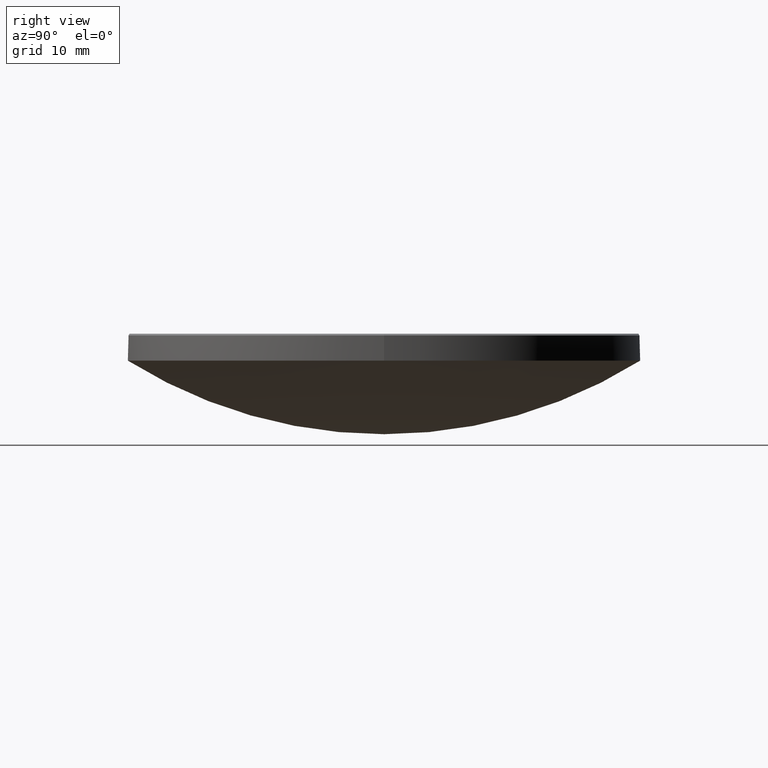
[diagram: clean part render]
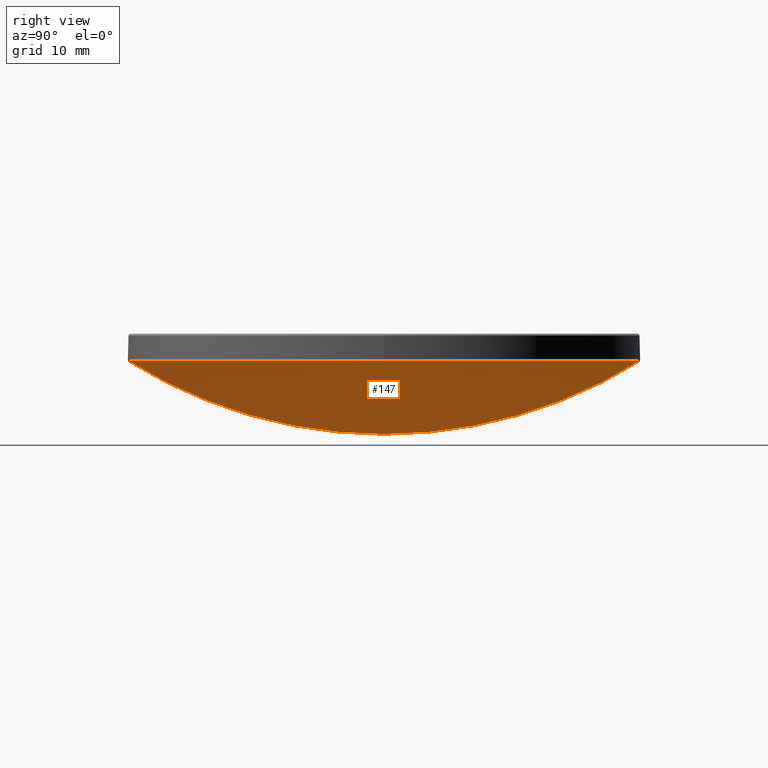
[diagram: same view with one face highlighted and labeled with its STEP entity id]
A machine part, right view. The second image highlights one B-rep face of the part: STEP entity #147.
In plain terms, the highlighted spherical surface has radius 47.87 mm.
Its self-contained STEP definition (entity closure, byte-faithful):
#12 = VERTEX_POINT ( 'NONE', #98 ) ;
#21 = CIRCLE ( 'NONE', #86, 47.86999999999999744 ) ;
#23 = DIRECTION ( 'NONE',  ( -0.000000000000000000, -0.000000000000000000, 1.000000000000000000 ) ) ;
#38 = CARTESIAN_POINT ( 'NONE',  ( 0.000000000000000000, 0.000000000000000000, 13.00000000000000000 ) ) ;
#46 = CIRCLE ( 'NONE', #179, 25.39999999999999503 ) ;
#51 = EDGE_CURVE ( 'NONE', #247, #54, #21, .T. ) ;
#54 = VERTEX_POINT ( 'NONE', #189 ) ;
#58 = DIRECTION ( 'NONE',  ( -1.000000000000000000, 0.000000000000000000, 0.000000000000000000 ) ) ;
#81 = EDGE_CURVE ( 'NONE', #247, #279, #237, .T. ) ;
#82 = DIRECTION ( 'NONE',  ( 0.000000000000000000, 0.000000000000000000, -1.000000000000000000 ) ) ;
#86 = AXIS2_PLACEMENT_3D ( 'NONE', #278, #99, #82 ) ;
#92 = CARTESIAN_POINT ( 'NONE',  ( 0.000000000000000000, 2.931192113759189857E-15, 5.705570236288731500 ) ) ;
#98 = CARTESIAN_POINT ( 'NONE',  ( 25.39999999999999503, 3.110602869834276471E-15, 13.00000000000000000 ) ) ;
#99 = DIRECTION ( 'NONE',  ( 1.000000000000000000, -0.000000000000000000, 0.000000000000000000 ) ) ;
#105 = AXIS2_PLACEMENT_3D ( 'NONE', #252, #230, #112 ) ;
#106 = EDGE_CURVE ( 'NONE', #12, #54, #46, .T. ) ;
#109 = ORIENTED_EDGE ( 'NONE', *, *, #51, .T. ) ;
#112 = DIRECTION ( 'NONE',  ( 1.000000000000000000, 0.000000000000000000, 0.000000000000000000 ) ) ;
#121 = CARTESIAN_POINT ( 'NONE',  ( -3.110602869834276865E-15, -25.39999999999999858, 12.99999999999999822 ) ) ;
#124 = EDGE_LOOP ( 'NONE', ( #160, #109, #205, #249 ) ) ;
#144 = DIRECTION ( 'NONE',  ( 0.000000000000000000, 1.000000000000000000, 0.000000000000000000 ) ) ;
#147 = ADVANCED_FACE ( 'NONE', ( #185 ), #194, .T. ) ;
#160 = ORIENTED_EDGE ( 'NONE', *, *, #81, .F. ) ;
#169 = CIRCLE ( 'NONE', #105, 25.39999999999999503 ) ;
#179 = AXIS2_PLACEMENT_3D ( 'NONE', #38, #23, #231 ) ;
#185 = FACE_OUTER_BOUND ( 'NONE', #124, .T. ) ;
#189 = CARTESIAN_POINT ( 'NONE',  ( 0.000000000000000000, 25.39999999999999858, 12.99999999999999822 ) ) ;
#194 = SPHERICAL_SURFACE ( 'NONE', #254, 47.86999999999999744 ) ;
#203 = EDGE_CURVE ( 'NONE', #279, #12, #169, .T. ) ;
#205 = ORIENTED_EDGE ( 'NONE', *, *, #106, .F. ) ;
#210 = DIRECTION ( 'NONE',  ( -1.000000000000000000, 1.224646799147353207E-16, 0.000000000000000000 ) ) ;
#229 = CARTESIAN_POINT ( 'NONE',  ( 0.000000000000000000, 0.000000000000000000, 53.57557023628872628 ) ) ;
#230 = DIRECTION ( 'NONE',  ( -0.000000000000000000, -0.000000000000000000, 1.000000000000000000 ) ) ;
#231 = DIRECTION ( 'NONE',  ( 1.000000000000000000, 0.000000000000000000, 0.000000000000000000 ) ) ;
#237 = CIRCLE ( 'NONE', #264, 47.86999999999999744 ) ;
#247 = VERTEX_POINT ( 'NONE', #92 ) ;
#249 = ORIENTED_EDGE ( 'NONE', *, *, #203, .F. ) ;
#251 = CARTESIAN_POINT ( 'NONE',  ( 0.000000000000000000, 0.000000000000000000, 53.57557023628872628 ) ) ;
#252 = CARTESIAN_POINT ( 'NONE',  ( 0.000000000000000000, 0.000000000000000000, 13.00000000000000000 ) ) ;
#254 = AXIS2_PLACEMENT_3D ( 'NONE', #251, #58, #144 ) ;
#259 = DIRECTION ( 'NONE',  ( -1.224646799147353207E-16, -1.000000000000000000, 0.000000000000000000 ) ) ;
#264 = AXIS2_PLACEMENT_3D ( 'NONE', #229, #210, #259 ) ;
#278 = CARTESIAN_POINT ( 'NONE',  ( 0.000000000000000000, 0.000000000000000000, 53.57557023628872628 ) ) ;
#279 = VERTEX_POINT ( 'NONE', #121 ) ;